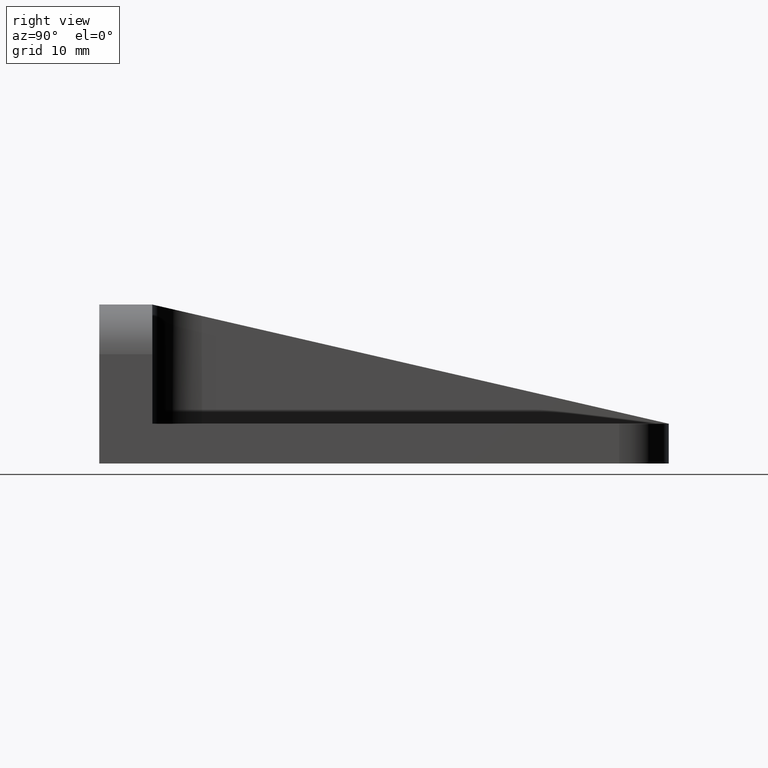
[diagram: clean part render]
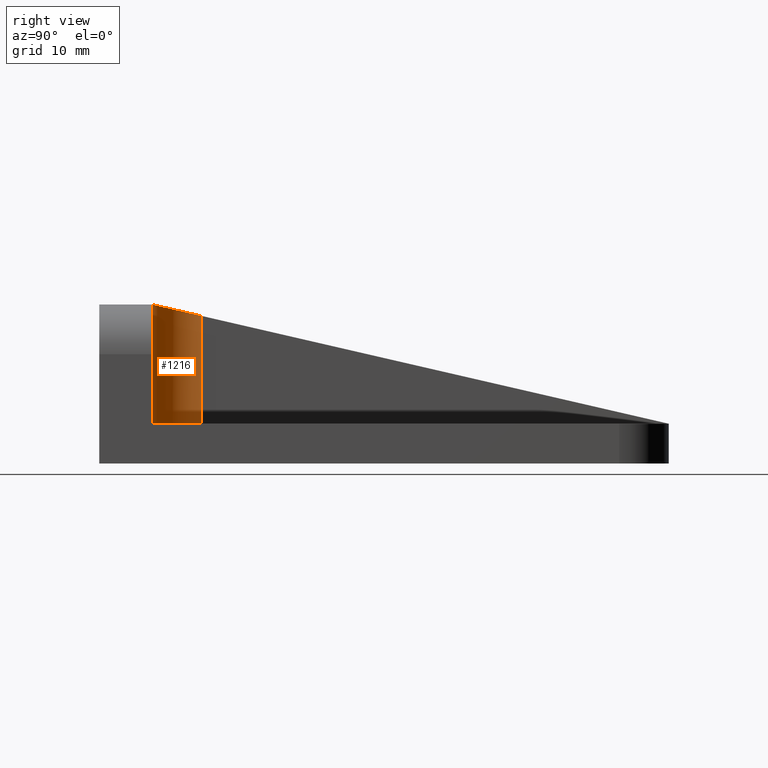
[diagram: same view with one face highlighted and labeled with its STEP entity id]
A machine part, right view. The second image highlights one B-rep face of the part: STEP entity #1216.
In plain terms, the highlighted cylindrical surface (partial cylindrical patch) has radius 7.5 mm, axis along (0, 0, -1).
Its self-contained STEP definition (entity closure, byte-faithful):
#12 = CARTESIAN_POINT ( 'NONE',  ( 10.50000000000000888, 15.49999999999999645, -83.39214591314942027 ) ) ;
#24 = DIRECTION ( 'NONE',  ( 0.0000000000000000000, 0.0000000000000000000, -1.000000000000000000 ) ) ;
#33 = AXIS2_PLACEMENT_3D ( 'NONE', #234, #635, #873 ) ;
#54 = EDGE_CURVE ( 'NONE', #317, #76, #368, .T. ) ;
#76 = VERTEX_POINT ( 'NONE', #618 ) ;
#116 = ORIENTED_EDGE ( 'NONE', *, *, #306, .F. ) ;
#123 = CARTESIAN_POINT ( 'NONE',  ( 10.50000000000000888, 7.999999999999996447, 23.99999999999999289 ) ) ;
#137 = CYLINDRICAL_SURFACE ( 'NONE', #782, 7.500000000000000000 ) ;
#140 = CARTESIAN_POINT ( 'NONE',  ( 3.000000000000007994, 15.49999999999999645, 6.000000000000005329 ) ) ;
#156 = ORIENTED_EDGE ( 'NONE', *, *, #930, .F. ) ;
#196 = EDGE_LOOP ( 'NONE', ( #116, #1202, #216, #156 ) ) ;
#211 = VERTEX_POINT ( 'NONE', #1177 ) ;
#216 = ORIENTED_EDGE ( 'NONE', *, *, #54, .F. ) ;
#217 = DIRECTION ( 'NONE',  ( -1.000000000000000000, 0.0000000000000000000, 0.0000000000000000000 ) ) ;
#234 = CARTESIAN_POINT ( 'NONE',  ( 10.50000000000000888, 15.49999999999999645, 6.000000000000005329 ) ) ;
#306 = EDGE_CURVE ( 'NONE', #416, #211, #821, .T. ) ;
#317 = VERTEX_POINT ( 'NONE', #319 ) ;
#319 = CARTESIAN_POINT ( 'NONE',  ( 10.50000000000000888, 7.999999999999996447, 24.00000000000000000 ) ) ;
#368 =( BOUNDED_CURVE ( )  B_SPLINE_CURVE ( 3, ( #701, #636, #445, #1077 ),
 .UNSPECIFIED., .F., .T. ) 
 B_SPLINE_CURVE_WITH_KNOTS ( ( 4, 4 ),
 ( 3.141592653589793116, 4.712388980384687898 ),
 .UNSPECIFIED. ) 
 CURVE ( )  GEOMETRIC_REPRESENTATION_ITEM ( )  RATIONAL_B_SPLINE_CURVE ( ( 1.000000000000000000, 0.8047378541243654926, 0.8047378541243654926, 1.000000000000000000 ) ) 
 REPRESENTATION_ITEM ( '' )  );
#379 = EDGE_CURVE ( 'NONE', #76, #416, #526, .T. ) ;
#416 = VERTEX_POINT ( 'NONE', #1229 ) ;
#445 = CARTESIAN_POINT ( 'NONE',  ( 3.000000000000017764, 11.10660171779820082, 23.28309191127733868 ) ) ;
#526 = LINE ( 'NONE', #140, #1150 ) ;
#618 = CARTESIAN_POINT ( 'NONE',  ( 3.000000000000009770, 15.49999999999998579, 22.26923076923077716 ) ) ;
#635 = DIRECTION ( 'NONE',  ( 0.0000000000000000000, 0.0000000000000000000, 1.000000000000000000 ) ) ;
#636 = CARTESIAN_POINT ( 'NONE',  ( 6.106601717798230133, 7.999999999999994671, 24.00000000000001066 ) ) ;
#701 = CARTESIAN_POINT ( 'NONE',  ( 10.50000000000000888, 7.999999999999996447, 24.00000000000000000 ) ) ;
#703 = LINE ( 'NONE', #123, #780 ) ;
#780 = VECTOR ( 'NONE', #886, 1000.000000000000000 ) ;
#782 = AXIS2_PLACEMENT_3D ( 'NONE', #12, #24, #217 ) ;
#793 = FACE_OUTER_BOUND ( 'NONE', #196, .T. ) ;
#821 = CIRCLE ( 'NONE', #33, 7.500000000000000000 ) ;
#872 = DIRECTION ( 'NONE',  ( -0.0000000000000000000, 0.0000000000000000000, -1.000000000000000000 ) ) ;
#873 = DIRECTION ( 'NONE',  ( 1.000000000000000000, 0.0000000000000000000, 0.0000000000000000000 ) ) ;
#886 = DIRECTION ( 'NONE',  ( 0.0000000000000000000, 0.0000000000000000000, 1.000000000000000000 ) ) ;
#930 = EDGE_CURVE ( 'NONE', #211, #317, #703, .T. ) ;
#1077 = CARTESIAN_POINT ( 'NONE',  ( 3.000000000000009770, 15.49999999999998579, 22.26923076923077716 ) ) ;
#1150 = VECTOR ( 'NONE', #872, 1000.000000000000000 ) ;
#1177 = CARTESIAN_POINT ( 'NONE',  ( 10.50000000000000888, 7.999999999999996447, 6.000000000000005329 ) ) ;
#1202 = ORIENTED_EDGE ( 'NONE', *, *, #379, .F. ) ;
#1216 = ADVANCED_FACE ( 'NONE', ( #793 ), #137, .F. ) ;
#1229 = CARTESIAN_POINT ( 'NONE',  ( 3.000000000000007994, 15.49999999999999645, 6.000000000000005329 ) ) ;